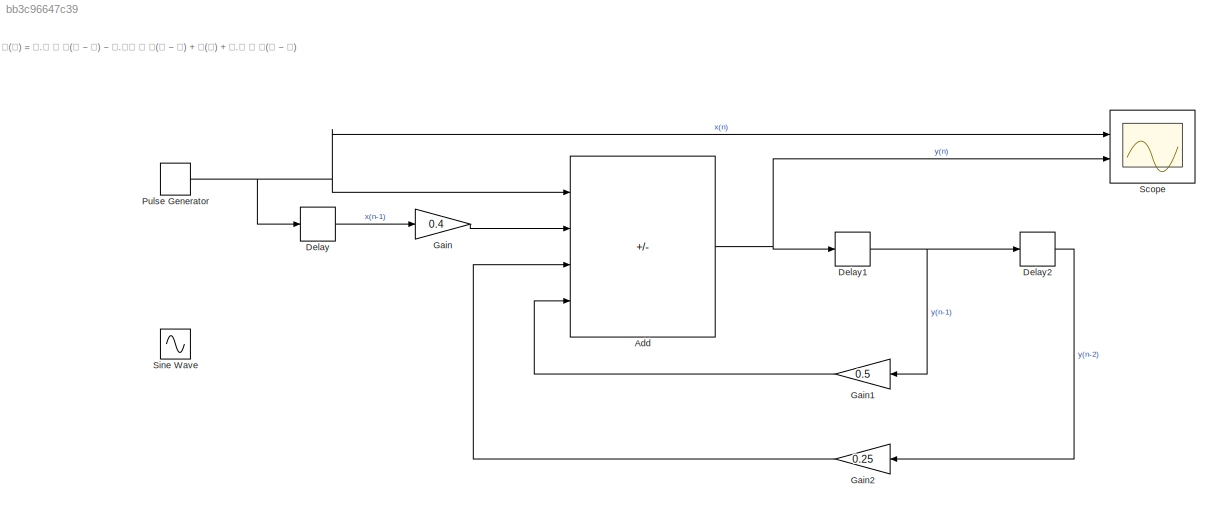
MODEL slx_bb3c96647c39
KIND model
CONFIG AbsTol = auto
CONFIG EnableMultiTasking = off
CONFIG FixedStep = auto
CONFIG MaxStep = auto
CONFIG MinStep = auto
CONFIG RelTol = 1e-3
CONFIG SampleTimeConstraint = Unconstrained
CONFIG SolverName = VariableStepAuto
CONFIG StartTime = 0.0
CONFIG StopTime = 0.5
BLOCK [Sum] Add
  IconShape = rectangular
  Inputs = ++-+
  Ports = [4, 1]
BLOCK [Delay] Delay
  DelayLength = 1
  InputPortMap = u0
  Ports = [1, 1]
BLOCK [Delay] Delay1
  DelayLength = 1
  InputPortMap = u0
  Ports = [1, 1]
BLOCK [Delay] Delay2
  DelayLength = 1
  InputPortMap = u0
  Ports = [1, 1]
BLOCK [Gain] Gain
  Gain = 0.4
BLOCK [Gain] Gain1
  Gain = 0.5
  NameLocation = top
BLOCK [Gain] Gain2
  Gain = 0.25
  NameLocation = top
BLOCK [DiscretePulseGenerator] Pulse Generator
  Period = 0.1
  Ports = [0, 1]
  PulseType = Time based
  PulseWidth = 5
BLOCK [Scope] Scope
  Floating = off
  NumInputPorts = 2
  Ports = [2]
  ScopeSpecificationString = Simulink.scopes.TimeScopeBlockCfg('CurrentConfiguration', extmgr.ConfigurationSet(extmgr.Configuration('Core','General UI',true),extmgr.Configuration('Core','Source UI',true),extmgr.Configuration('Sources','WiredSimulink',true),extmgr.Configuration('Visuals','Time Domain',true,'SerializedDisplays',{struct('MinYLimReal','-0.125','MaxYLimReal','1.125','YLabelReal','','MinYLimMag','0.00000','MaxYLimM...<+1999ch>
BLOCK [Sin] Sine Wave
  Ports = [0, 1]
  SampleTime = 0
ANNOTATION (root): 𝐲(𝐧) = 𝟎.𝟓 ∗ 𝐲(𝐧 − 𝟏) − 𝟎.𝟐𝟓 ∗ 𝐲(𝐧 − 𝟐) + 𝐱(𝐧) + 𝟎.𝟒 ∗ 𝐱(𝐧 − 𝟏)
NET Add:1 -> Delay1:1, Scope:2
NET Delay1:1 -> Delay2:1, Gain1:1
LINE Delay2:1 -> Gain2:1
LINE Delay:1 -> Gain:1
LINE Gain1:1 -> Add:4
LINE Gain2:1 -> Add:3
LINE Gain:1 -> Add:2
NET Pulse Generator:1 -> Add:1, Delay:1, Scope:1
note: NET lines group one-source signal fan-out (src -> all destinations, sorted); 1:1 wires keep LINE
